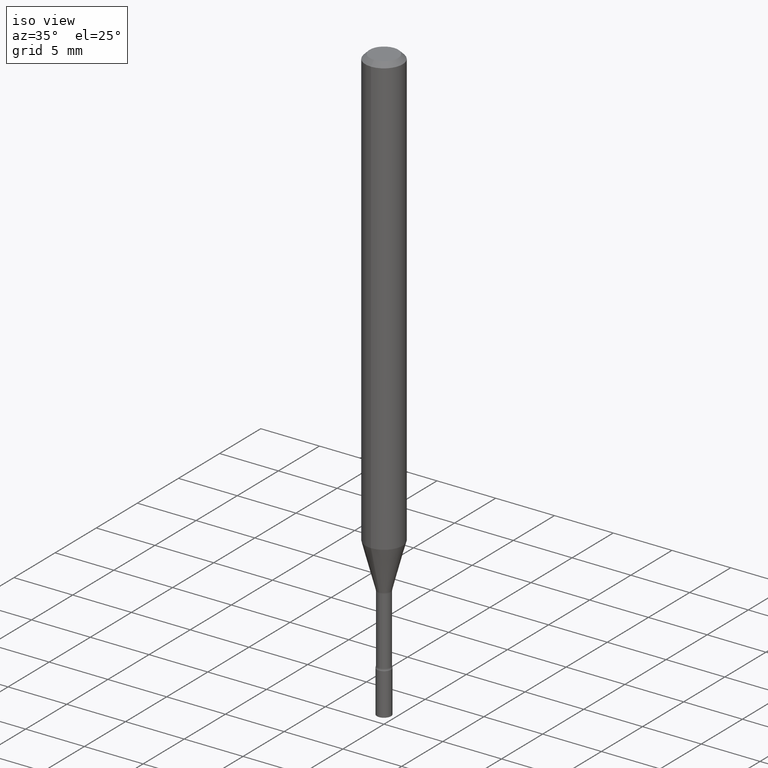
[diagram: clean part render]
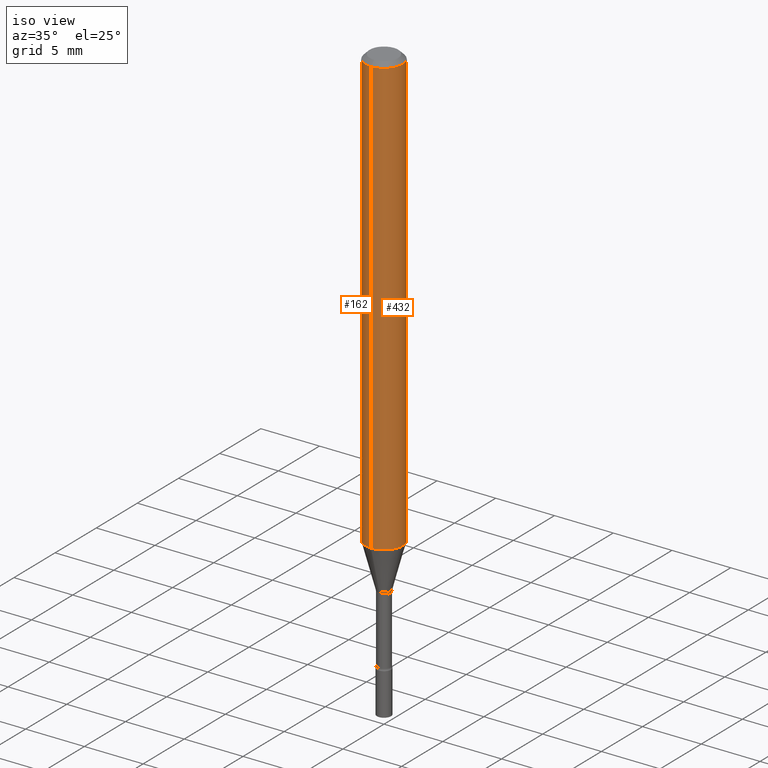
[diagram: same view with one multi-face feature highlighted, each face labeled with its STEP entity id]
A machine part, iso view. The highlighted faces form ONE feature: a constant-radius fillet chain: 2 tangent blend faces with common blend radius 1.5875 mm. The faces share edges in the B-rep.
Their STEP definitions:
[1] entity #162 (Cylinder):
#11 = ORIENTED_EDGE ( 'NONE', *, *, #475, .T. ) ;
#24 = AXIS2_PLACEMENT_3D ( 'NONE', #278, #437, #69 ) ;
#56 = VECTOR ( 'NONE', #449, 39.37007874015748143 ) ;
#68 = EDGE_CURVE ( 'NONE', #308, #105, #425, .T. ) ;
#69 = DIRECTION ( 'NONE',  ( -6.982962677686265922E-15, -1.000000000000000000, 3.491467325019567696E-15 ) ) ;
#87 = VERTEX_POINT ( 'NONE', #111 ) ;
#97 = DIRECTION ( 'NONE',  ( -2.445478591985838029E-29, 3.491467325019567696E-15, 1.000000000000000000 ) ) ;
#105 = VERTEX_POINT ( 'NONE', #109 ) ;
#109 = CARTESIAN_POINT ( 'NONE',  ( -4.364351673553912750E-16, -0.06250000000000005551, -0.01499999999999981209 ) ) ;
#111 = CARTESIAN_POINT ( 'NONE',  ( -4.364351673553557762E-16, -0.06250000000000517641, -1.473225147374217503 ) ) ;
#127 = LINE ( 'NONE', #288, #56 ) ;
#131 = CARTESIAN_POINT ( 'NONE',  ( 4.440892098500988052E-16, 0.06249999999999993755, -0.01500000000000024751 ) ) ;
#132 = ORIENTED_EDGE ( 'NONE', *, *, #396, .F. ) ;
#162 = ADVANCED_FACE ( 'NONE', ( #402 ), #445, .T. ) ;
#184 = DIRECTION ( 'NONE',  ( -2.445478591985837749E-29, 3.491467325019568091E-15, 1.000000000000000000 ) ) ;
#185 = CARTESIAN_POINT ( 'NONE',  ( 3.668217887978764348E-31, -5.237200987529362293E-17, -0.01500000000000003067 ) ) ;
#210 = ORIENTED_EDGE ( 'NONE', *, *, #520, .T. ) ;
#231 = LINE ( 'NONE', #378, #258 ) ;
#258 = VECTOR ( 'NONE', #184, 39.37007874015748143 ) ;
#278 = CARTESIAN_POINT ( 'NONE',  ( 0.000000000000000000, 0.000000000000000000, 0.000000000000000000 ) ) ;
#288 = CARTESIAN_POINT ( 'NONE',  ( 4.440892098500625669E-16, 0.06250000000000000000, -2.182167078137229810E-16 ) ) ;
#304 = CARTESIAN_POINT ( 'NONE',  ( 4.440892098500984107E-16, 0.06249999999999482359, -1.473225147374217947 ) ) ;
#308 = VERTEX_POINT ( 'NONE', #131 ) ;
#326 = EDGE_LOOP ( 'NONE', ( #132, #210, #11, #418 ) ) ;
#329 = CIRCLE ( 'NONE', #384, 0.06250000000000000000 ) ;
#341 = DIRECTION ( 'NONE',  ( -6.982962677686265922E-15, -1.000000000000000000, 4.370956789862821150E-15 ) ) ;
#362 = AXIS2_PLACEMENT_3D ( 'NONE', #185, #97, #431 ) ;
#378 = CARTESIAN_POINT ( 'NONE',  ( -4.364351673553916201E-16, -0.06250000000000000000, 2.182167078137229810E-16 ) ) ;
#384 = AXIS2_PLACEMENT_3D ( 'NONE', #499, #463, #341 ) ;
#396 = EDGE_CURVE ( 'NONE', #504, #308, #127, .T. ) ;
#402 = FACE_OUTER_BOUND ( 'NONE', #326, .T. ) ;
#418 = ORIENTED_EDGE ( 'NONE', *, *, #68, .F. ) ;
#425 = CIRCLE ( 'NONE', #362, 0.06250000000000000000 ) ;
#431 = DIRECTION ( 'NONE',  ( -6.982962677686265922E-15, -1.000000000000000000, 3.483106191921935554E-15 ) ) ;
#437 = DIRECTION ( 'NONE',  ( -2.445478591985838029E-29, 3.491467325019567696E-15, 1.000000000000000000 ) ) ;
#445 = CYLINDRICAL_SURFACE ( 'NONE', #24, 0.06250000000000000000 ) ;
#449 = DIRECTION ( 'NONE',  ( -2.445478591985837749E-29, 3.491467325019568091E-15, 1.000000000000000000 ) ) ;
#463 = DIRECTION ( 'NONE',  ( -2.445478591985838029E-29, 3.491467325019567696E-15, 1.000000000000000000 ) ) ;
#475 = EDGE_CURVE ( 'NONE', #87, #105, #231, .T. ) ;
#499 = CARTESIAN_POINT ( 'NONE',  ( 3.602740559078830518E-29, -5.143717464454219042E-15, -1.473225147374217725 ) ) ;
#504 = VERTEX_POINT ( 'NONE', #304 ) ;
#520 = EDGE_CURVE ( 'NONE', #504, #87, #329, .T. ) ;
[2] entity #432 (Cylinder):
#56 = VECTOR ( 'NONE', #449, 39.37007874015748143 ) ;
#87 = VERTEX_POINT ( 'NONE', #111 ) ;
#91 = CIRCLE ( 'NONE', #233, 0.06250000000000000000 ) ;
#95 = EDGE_CURVE ( 'NONE', #105, #308, #91, .T. ) ;
#96 = CARTESIAN_POINT ( 'NONE',  ( 0.000000000000000000, 0.000000000000000000, 0.000000000000000000 ) ) ;
#105 = VERTEX_POINT ( 'NONE', #109 ) ;
#109 = CARTESIAN_POINT ( 'NONE',  ( -4.364351673553912750E-16, -0.06250000000000005551, -0.01499999999999981209 ) ) ;
#111 = CARTESIAN_POINT ( 'NONE',  ( -4.364351673553557762E-16, -0.06250000000000517641, -1.473225147374217503 ) ) ;
#121 = DIRECTION ( 'NONE',  ( -2.445478591985838029E-29, 3.491467325019567696E-15, 1.000000000000000000 ) ) ;
#127 = LINE ( 'NONE', #288, #56 ) ;
#131 = CARTESIAN_POINT ( 'NONE',  ( 4.440892098500988052E-16, 0.06249999999999993755, -0.01500000000000024751 ) ) ;
#148 = DIRECTION ( 'NONE',  ( -6.982962677686265922E-15, -1.000000000000000000, 3.483106191921935554E-15 ) ) ;
#166 = ORIENTED_EDGE ( 'NONE', *, *, #343, .T. ) ;
#167 = CIRCLE ( 'NONE', #284, 0.06250000000000000000 ) ;
#184 = DIRECTION ( 'NONE',  ( -2.445478591985837749E-29, 3.491467325019568091E-15, 1.000000000000000000 ) ) ;
#231 = LINE ( 'NONE', #378, #258 ) ;
#233 = AXIS2_PLACEMENT_3D ( 'NONE', #397, #239, #148 ) ;
#239 = DIRECTION ( 'NONE',  ( -2.445478591985838029E-29, 3.491467325019567696E-15, 1.000000000000000000 ) ) ;
#248 = AXIS2_PLACEMENT_3D ( 'NONE', #96, #269, #337 ) ;
#258 = VECTOR ( 'NONE', #184, 39.37007874015748143 ) ;
#266 = FACE_OUTER_BOUND ( 'NONE', #500, .T. ) ;
#269 = DIRECTION ( 'NONE',  ( -2.445478591985838029E-29, 3.491467325019567696E-15, 1.000000000000000000 ) ) ;
#284 = AXIS2_PLACEMENT_3D ( 'NONE', #291, #121, #325 ) ;
#288 = CARTESIAN_POINT ( 'NONE',  ( 4.440892098500625669E-16, 0.06250000000000000000, -2.182167078137229810E-16 ) ) ;
#291 = CARTESIAN_POINT ( 'NONE',  ( 3.602740559078830518E-29, -5.143717464454219042E-15, -1.473225147374217725 ) ) ;
#304 = CARTESIAN_POINT ( 'NONE',  ( 4.440892098500984107E-16, 0.06249999999999482359, -1.473225147374217947 ) ) ;
#305 = ORIENTED_EDGE ( 'NONE', *, *, #475, .F. ) ;
#308 = VERTEX_POINT ( 'NONE', #131 ) ;
#325 = DIRECTION ( 'NONE',  ( -6.982962677686265922E-15, -1.000000000000000000, 4.370956789862821150E-15 ) ) ;
#337 = DIRECTION ( 'NONE',  ( -6.982962677686265922E-15, -1.000000000000000000, 3.491467325019567696E-15 ) ) ;
#343 = EDGE_CURVE ( 'NONE', #87, #504, #167, .T. ) ;
#378 = CARTESIAN_POINT ( 'NONE',  ( -4.364351673553916201E-16, -0.06250000000000000000, 2.182167078137229810E-16 ) ) ;
#388 = CYLINDRICAL_SURFACE ( 'NONE', #248, 0.06250000000000000000 ) ;
#396 = EDGE_CURVE ( 'NONE', #504, #308, #127, .T. ) ;
#397 = CARTESIAN_POINT ( 'NONE',  ( 3.668217887978764348E-31, -5.237200987529362293E-17, -0.01500000000000003067 ) ) ;
#429 = ORIENTED_EDGE ( 'NONE', *, *, #396, .T. ) ;
#432 = ADVANCED_FACE ( 'NONE', ( #266 ), #388, .T. ) ;
#449 = DIRECTION ( 'NONE',  ( -2.445478591985837749E-29, 3.491467325019568091E-15, 1.000000000000000000 ) ) ;
#475 = EDGE_CURVE ( 'NONE', #87, #105, #231, .T. ) ;
#493 = ORIENTED_EDGE ( 'NONE', *, *, #95, .F. ) ;
#500 = EDGE_LOOP ( 'NONE', ( #166, #429, #493, #305 ) ) ;
#504 = VERTEX_POINT ( 'NONE', #304 ) ;